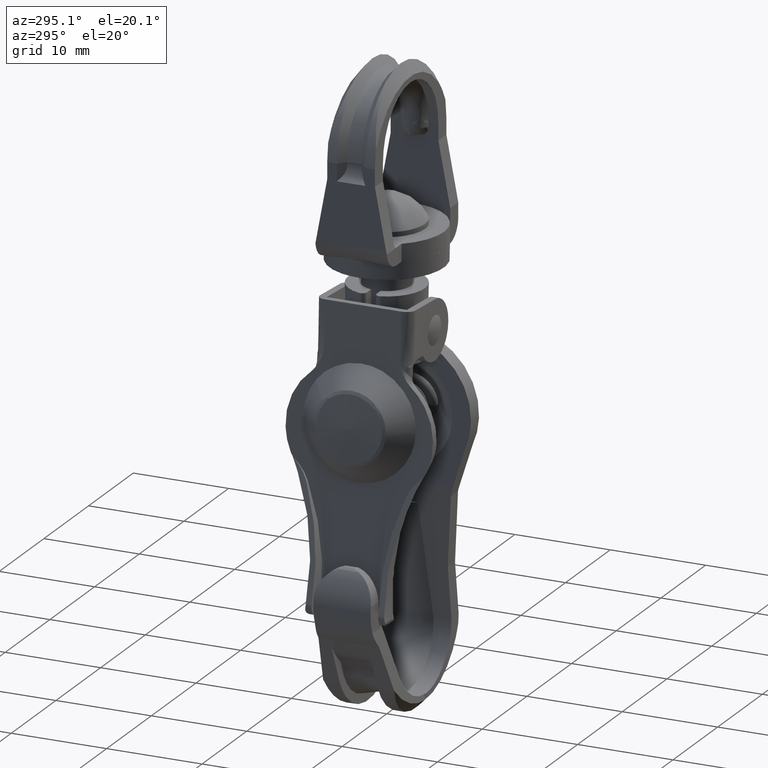
[diagram: clean part render]
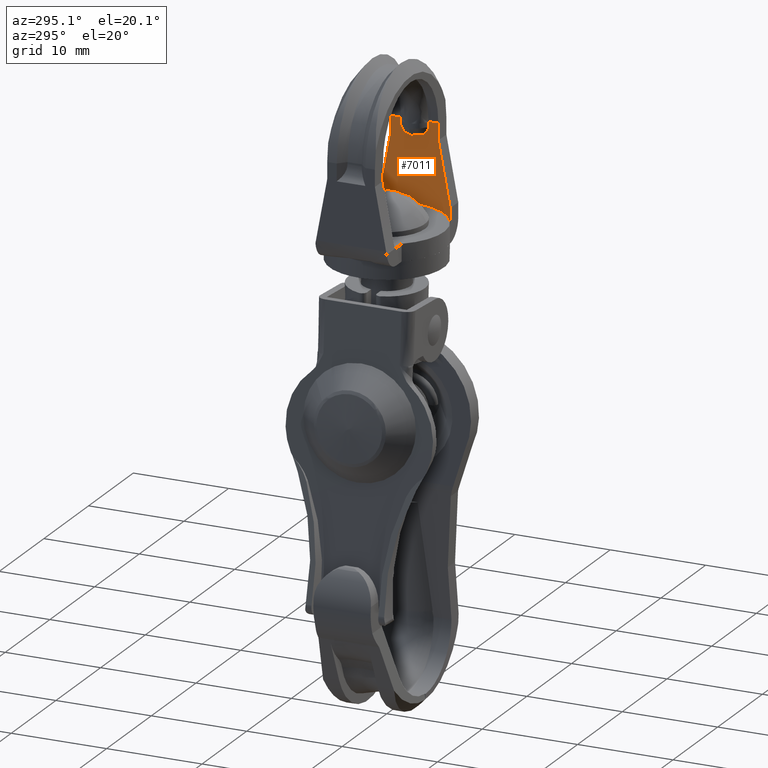
[diagram: same view with one face highlighted and labeled with its STEP entity id]
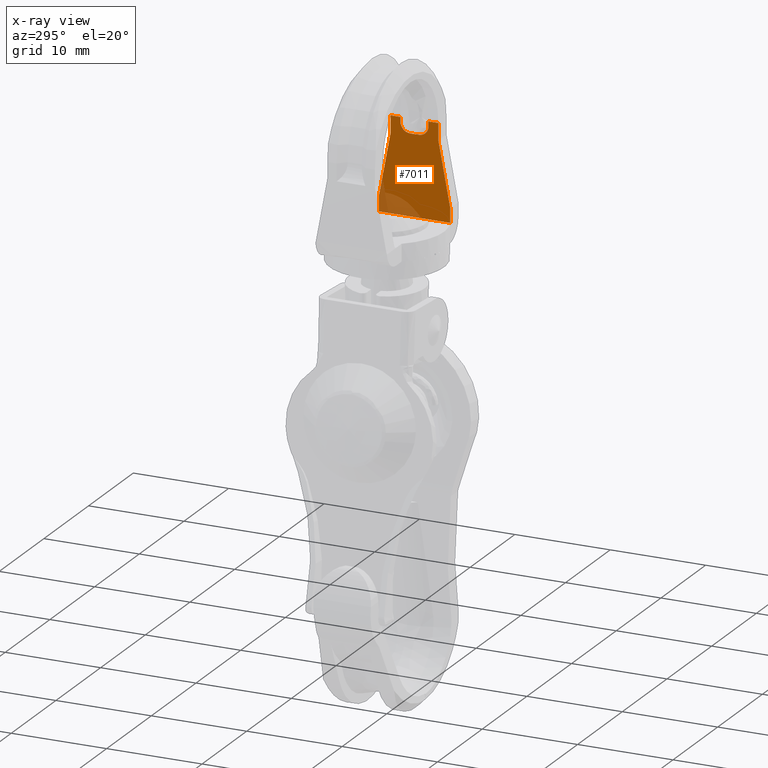
[diagram: x-ray of the same camera — body ghosted, the highlighted face saturated]
A machine part, auxiliary view. The second image highlights one B-rep face of the part: STEP entity #7011.
The next image is the same camera in x-ray: the body ghosted, the highlighted face saturated — about 12% of this face is hidden behind the body in this view.
In plain terms, the highlighted face is a freeform B-spline surface patch.
Its self-contained STEP definition (entity closure, byte-faithful):
#4857=CARTESIAN_POINT('',(6.199992999999890,-0.399995021501001,17.0));
#4858=VERTEX_POINT('',#4857);
#4869=CARTESIAN_POINT('',(6.199999999999890,-1.469691886603556,18.0));
#4870=VERTEX_POINT('',#4869);
#4871=CARTESIAN_POINT('',(6.199999999999890,-1.469691886603556,18.0));
#4872=CARTESIAN_POINT('',(6.199999775761151,-1.469691886603413,17.931310811027728));
#4873=CARTESIAN_POINT('',(6.199999530550191,-1.462547196660644,17.863840445653810));
#4874=CARTESIAN_POINT('',(6.199999132561764,-1.441549988141003,17.764388608154210));
#4875=CARTESIAN_POINT('',(6.199998994828714,-1.432823507109319,17.731532677431989));
#4876=CARTESIAN_POINT('',(6.199998708940714,-1.411819844098940,17.666426535500008));
#4877=CARTESIAN_POINT('',(6.199998561236943,-1.399557507530662,17.634298650564912));
#4878=CARTESIAN_POINT('',(6.199998112694023,-1.358304825412215,17.541028091720300));
#4879=CARTESIAN_POINT('',(6.199997803351899,-1.324675373302972,17.482243211074721));
#4880=CARTESIAN_POINT('',(6.199997323824196,-1.265013401653561,17.399173700051961));
#4881=CARTESIAN_POINT('',(6.199997160673489,-1.243469045274472,17.372243031223810));
#4882=CARTESIAN_POINT('',(6.199996836183207,-1.198190892060549,17.321278519629431));
#4883=CARTESIAN_POINT('',(6.199996512052121,-1.150562876358085,17.272937678130251));
#4884=CARTESIAN_POINT('',(6.199996188621676,-1.098351265758910,17.229714515183620));
#4885=CARTESIAN_POINT('',(6.199995865542909,-1.043838968010924,17.189060117047770));
#4886=CARTESIAN_POINT('',(6.199995703338032,-1.015275482667617,17.169927516194321));
#4887=CARTESIAN_POINT('',(6.199995223858807,-0.927248493328811,17.117214826475021));
#4888=CARTESIAN_POINT('',(6.199994915505883,-0.865864266442357,17.088422153825761));
#4889=CARTESIAN_POINT('',(6.199994320045136,-0.738020313457338,17.042773890353111));
#4890=CARTESIAN_POINT('',(6.199994031212387,-0.671041145034179,17.025945561662720));
#4891=CARTESIAN_POINT('',(6.199993491737341,-0.536482579333561,17.004629532434070));
#4892=CARTESIAN_POINT('',(6.199993239245754,-0.468506418594753,16.999999769800461));
#4893=CARTESIAN_POINT('',(6.199992999999890,-0.399995021501001,17.0));
#4894=B_SPLINE_CURVE_WITH_KNOTS('',3,(#4871,#4872,#4873,#4874,#4875,#4876,#4877,#4878,#4879,#4880,#4881,#4882,#4883,#4884,#4885,#4886,#4887,#4888,#4889,#4890,#4891,#4892,#4893),.UNSPECIFIED.,.F.,.U.,(4,2,2,2,2,2,1,2,2,2,2,4),(0.0,0.124999999999997,0.187499999999999,0.250000000000000,0.374999999999998,0.437499999999999,0.500000000000000,0.562500000000001,0.625000000000003,0.750000000000002,0.875000000000001,1.0),.UNSPECIFIED.);
#4895=EDGE_CURVE('',#4870,#4858,#4894,.T.);
#4946=CARTESIAN_POINT('',(6.199992999999890,0.399992827923178,17.0));
#4947=VERTEX_POINT('',#4946);
#4957=CARTESIAN_POINT('',(6.199999999999890,1.469689693018786,18.0));
#4958=VERTEX_POINT('',#4957);
#4970=CARTESIAN_POINT('',(6.199992999999890,0.399992827923178,17.0));
#4971=CARTESIAN_POINT('',(6.199992999999891,0.468454862453258,17.0));
#4972=CARTESIAN_POINT('',(6.199999999999891,0.536119430453622,17.004631381757171));
#4973=CARTESIAN_POINT('',(6.199999999999890,0.669427434725080,17.025632111340951));
#4974=CARTESIAN_POINT('',(6.199999999999889,0.735088297484142,17.041900252073589));
#4975=CARTESIAN_POINT('',(6.199999999999891,0.831874528418068,17.076204822056258));
#4976=CARTESIAN_POINT('',(6.199999999999890,0.863689040153847,17.089257838188288));
#4977=CARTESIAN_POINT('',(6.199999999999890,0.925289812867931,17.118154292931049));
#4978=CARTESIAN_POINT('',(6.199999999999890,0.985197117101860,17.149953661200939));
#4979=CARTESIAN_POINT('',(6.199999999999891,1.041705174268414,17.187579958291529));
#4980=CARTESIAN_POINT('',(6.199999999999889,1.096463143090797,17.228206225672391));
#4981=CARTESIAN_POINT('',(6.199999999999889,1.123100478015229,17.250155377476059));
#4982=CARTESIAN_POINT('',(6.199999999999888,1.198708604969998,17.319287084047460));
#4983=CARTESIAN_POINT('',(6.199999999999890,1.243771348139805,17.369882153289950));
#4984=CARTESIAN_POINT('',(6.199999999999888,1.323278874265856,17.480029969485660));
#4985=CARTESIAN_POINT('',(6.199999999999888,1.357839182215535,17.540165155379949));
#4986=CARTESIAN_POINT('',(6.199999999999891,1.412898962909915,17.664286074164540));
#4987=CARTESIAN_POINT('',(6.199999999999890,1.433899878252903,17.728780245323211));
#4988=CARTESIAN_POINT('',(6.199999999999891,1.455311273713744,17.829282597344790));
#4989=CARTESIAN_POINT('',(6.199999999999890,1.460711725000686,17.863304582020479));
#4990=CARTESIAN_POINT('',(6.199999999999889,1.467884758363010,17.931401752062978));
#4991=CARTESIAN_POINT('',(6.199999999999891,1.469689693018788,17.965616636442530));
#4992=CARTESIAN_POINT('',(6.199999999999890,1.469689693018788,18.0));
#4993=B_SPLINE_CURVE_WITH_KNOTS('',3,(#4970,#4971,#4972,#4973,#4974,#4975,#4976,#4977,#4978,#4979,#4980,#4981,#4982,#4983,#4984,#4985,#4986,#4987,#4988,#4989,#4990,#4991,#4992),.UNSPECIFIED.,.F.,.U.,(4,2,2,2,1,2,2,2,2,2,2,4),(0.0,0.124999999999998,0.249999999999995,0.312499999999995,0.374999999999995,0.437499999999995,0.499999999999995,0.624999999999994,0.749999999999994,0.874999999999994,0.937499999999997,1.0),.UNSPECIFIED.);
#4994=EDGE_CURVE('',#4947,#4958,#4993,.T.);
#5893=CARTESIAN_POINT('',(6.199992999999890,0.399992827923178,17.0));
#5894=CARTESIAN_POINT('',(6.199992999999890,-0.399995021501001,17.0));
#5895=QUASI_UNIFORM_CURVE('',1,(#5893,#5894),.UNSPECIFIED.,.F.,.U.);
#5896=EDGE_CURVE('',#4947,#4858,#5895,.T.);
#5921=CARTESIAN_POINT('',(6.200000000000000,1.469689693022034,18.500000000000000));
#5922=VERTEX_POINT('',#5921);
#5923=CARTESIAN_POINT('',(6.199999999999890,1.469689693018786,18.0));
#5924=CARTESIAN_POINT('',(6.200000000000000,1.469689693022034,18.500000000000000));
#5925=QUASI_UNIFORM_CURVE('',1,(#5923,#5924),.UNSPECIFIED.,.F.,.U.);
#5926=EDGE_CURVE('',#4958,#5922,#5925,.T.);
#5930=CARTESIAN_POINT('',(6.199999999999920,-1.469691172165122,18.500000000000000));
#5931=VERTEX_POINT('',#5930);
#5932=CARTESIAN_POINT('',(6.199999999999890,-1.469691886603556,18.0));
#5933=CARTESIAN_POINT('',(6.199999999999920,-1.469691172165122,18.500000000000000));
#5934=QUASI_UNIFORM_CURVE('',1,(#5932,#5933),.UNSPECIFIED.,.F.,.U.);
#5935=EDGE_CURVE('',#4870,#5931,#5934,.T.);
#6412=CARTESIAN_POINT('',(6.199999999999870,3.745018000000000,10.099996999999799));
#6413=VERTEX_POINT('',#6412);
#6421=CARTESIAN_POINT('',(6.199999999999870,2.499998000000000,16.750331727997850));
#6422=VERTEX_POINT('',#6421);
#6423=CARTESIAN_POINT('',(6.199999999999870,2.499998000000000,16.750331727997850));
#6424=CARTESIAN_POINT('',(6.199999999999870,3.009955236270665,13.404093177715803));
#6425=CARTESIAN_POINT('',(6.199999999999870,3.745018000000000,10.099996999999799));
#6433=(BOUNDED_CURVE()B_SPLINE_CURVE(2,(#6423,#6424,#6425),.UNSPECIFIED.,.F.,.U.)CURVE()GEOMETRIC_REPRESENTATION_ITEM()QUASI_UNIFORM_CURVE()RATIONAL_B_SPLINE_CURVE((1.0,0.999427623356928,1.0))REPRESENTATION_ITEM(''));
#6434=EDGE_CURVE('',#6422,#6413,#6433,.T.);
#6472=CARTESIAN_POINT('',(6.199992999999901,3.745017999999935,8.599990999999900));
#6473=VERTEX_POINT('',#6472);
#6483=CARTESIAN_POINT('',(6.199999999999870,3.745018000000000,10.099996999999799));
#6484=CARTESIAN_POINT('',(6.199992999999901,3.745017999999935,8.599990999999900));
#6485=QUASI_UNIFORM_CURVE('',1,(#6483,#6484),.UNSPECIFIED.,.F.,.U.);
#6486=EDGE_CURVE('',#6413,#6473,#6485,.T.);
#6648=CARTESIAN_POINT('',(6.199999999999870,-2.499997999999965,16.750331727997949));
#6649=VERTEX_POINT('',#6648);
#6657=CARTESIAN_POINT('',(6.199999999999870,-3.745018000000000,10.099996999999799));
#6658=VERTEX_POINT('',#6657);
#6659=CARTESIAN_POINT('',(6.199999999999870,-3.745018000000000,10.099996999999799));
#6660=CARTESIAN_POINT('',(6.199999999999870,-3.009955236270678,13.404093177715664));
#6661=CARTESIAN_POINT('',(6.199999999999870,-2.499997999999965,16.750331727997949));
#6669=(BOUNDED_CURVE()B_SPLINE_CURVE(2,(#6659,#6660,#6661),.UNSPECIFIED.,.F.,.U.)CURVE()GEOMETRIC_REPRESENTATION_ITEM()QUASI_UNIFORM_CURVE()RATIONAL_B_SPLINE_CURVE((1.0,0.999427623356928,1.0))REPRESENTATION_ITEM(''));
#6670=EDGE_CURVE('',#6658,#6649,#6669,.T.);
#6729=CARTESIAN_POINT('',(6.199992999999901,-3.745017999999935,8.599990999999900));
#6730=VERTEX_POINT('',#6729);
#6731=CARTESIAN_POINT('',(6.199999999999870,-3.745018000000000,10.099996999999799));
#6732=CARTESIAN_POINT('',(6.199992999999901,-3.745017999999935,8.599990999999900));
#6733=QUASI_UNIFORM_CURVE('',1,(#6731,#6732),.UNSPECIFIED.,.F.,.U.);
#6734=EDGE_CURVE('',#6658,#6730,#6733,.T.);
#6961=CARTESIAN_POINT('',(6.199992999999901,3.745017999999935,8.599990999999900));
#6962=CARTESIAN_POINT('',(6.199992999999901,-3.745017999999935,8.599990999999900));
#6963=QUASI_UNIFORM_CURVE('',1,(#6961,#6962),.UNSPECIFIED.,.F.,.U.);
#6964=EDGE_CURVE('',#6473,#6730,#6963,.T.);
#6970=CARTESIAN_POINT('',(6.199999999999890,-4.119145283682856,8.105485383769631));
#6971=CARTESIAN_POINT('',(6.199999999999890,-4.119145283682856,18.994505704743251));
#6972=CARTESIAN_POINT('',(6.199999999999890,4.119145484581277,8.105485383769631));
#6973=CARTESIAN_POINT('',(6.199999999999890,4.119145484581277,18.994505704743251));
#6974=B_SPLINE_SURFACE_WITH_KNOTS('',1,1,((#6970,#6972),(#6971,#6973)),.UNSPECIFIED.,.F.,.F.,.U.,(2,2),(2,2),(0.0,10.889020320973620),(0.0,8.238290768264132),.UNSPECIFIED.);
#6975=ORIENTED_EDGE('',*,*,#5935,.F.);
#6976=ORIENTED_EDGE('',*,*,#4895,.T.);
#6977=ORIENTED_EDGE('',*,*,#5896,.F.);
#6978=ORIENTED_EDGE('',*,*,#4994,.T.);
#6979=ORIENTED_EDGE('',*,*,#5926,.T.);
#6980=CARTESIAN_POINT('',(6.199999999999890,2.499998000000000,18.500000000000000));
#6981=VERTEX_POINT('',#6980);
#6982=CARTESIAN_POINT('',(6.199999999999890,2.499998000000000,18.500000000000000));
#6983=CARTESIAN_POINT('',(6.200000000000000,1.469689693022034,18.500000000000000));
#6984=QUASI_UNIFORM_CURVE('',1,(#6982,#6983),.UNSPECIFIED.,.F.,.U.);
#6985=EDGE_CURVE('',#6981,#5922,#6984,.T.);
#6986=ORIENTED_EDGE('',*,*,#6985,.F.);
#6987=CARTESIAN_POINT('',(6.199999999999890,2.499998000000000,18.500000000000000));
#6988=CARTESIAN_POINT('',(6.199999999999870,2.499998000000000,16.750331727997850));
#6989=QUASI_UNIFORM_CURVE('',1,(#6987,#6988),.UNSPECIFIED.,.F.,.U.);
#6990=EDGE_CURVE('',#6981,#6422,#6989,.T.);
#6991=ORIENTED_EDGE('',*,*,#6990,.T.);
#6992=ORIENTED_EDGE('',*,*,#6434,.T.);
#6993=ORIENTED_EDGE('',*,*,#6486,.T.);
#6994=ORIENTED_EDGE('',*,*,#6964,.T.);
#6995=ORIENTED_EDGE('',*,*,#6734,.F.);
#6996=ORIENTED_EDGE('',*,*,#6670,.T.);
#6997=CARTESIAN_POINT('',(6.199999999999890,-2.499998000000000,18.500000000000000));
#6998=VERTEX_POINT('',#6997);
#6999=CARTESIAN_POINT('',(6.199999999999890,-2.499998000000000,18.500000000000000));
#7000=CARTESIAN_POINT('',(6.199999999999870,-2.499997999999965,16.750331727997949));
#7001=QUASI_UNIFORM_CURVE('',1,(#6999,#7000),.UNSPECIFIED.,.F.,.U.);
#7002=EDGE_CURVE('',#6998,#6649,#7001,.T.);
#7003=ORIENTED_EDGE('',*,*,#7002,.F.);
#7004=CARTESIAN_POINT('',(6.199999999999920,-1.469691172165122,18.500000000000000));
#7005=CARTESIAN_POINT('',(6.199999999999890,-2.499998000000000,18.500000000000000));
#7006=QUASI_UNIFORM_CURVE('',1,(#7004,#7005),.UNSPECIFIED.,.F.,.U.);
#7007=EDGE_CURVE('',#5931,#6998,#7006,.T.);
#7008=ORIENTED_EDGE('',*,*,#7007,.F.);
#7009=EDGE_LOOP('',(#6975,#6976,#6977,#6978,#6979,#6986,#6991,#6992,#6993,#6994,#6995,#6996,#7003,#7008));
#7010=FACE_OUTER_BOUND('',#7009,.T.);
#7011=ADVANCED_FACE('',(#7010),#6974,.T.);